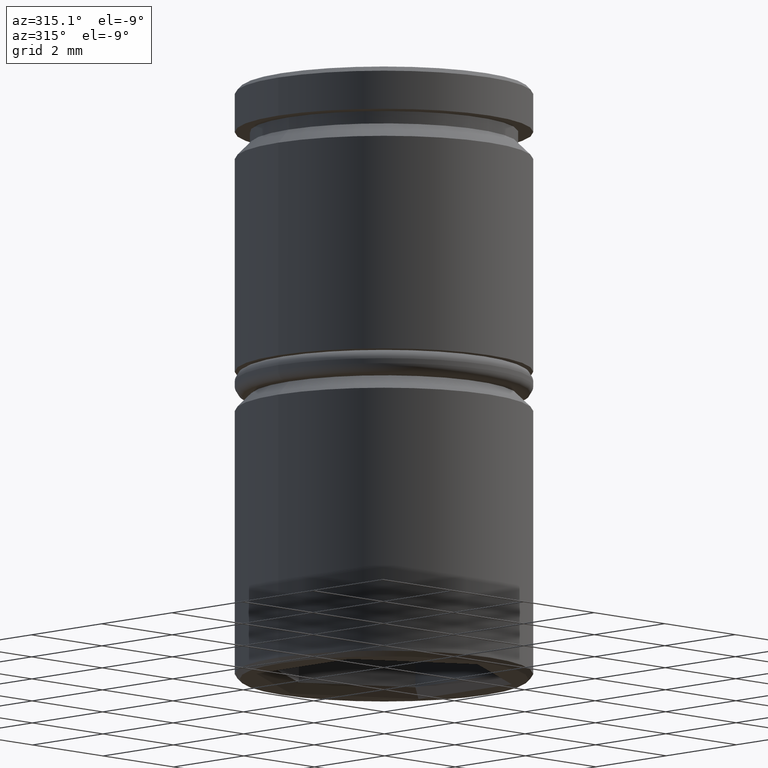
[diagram: clean part render]
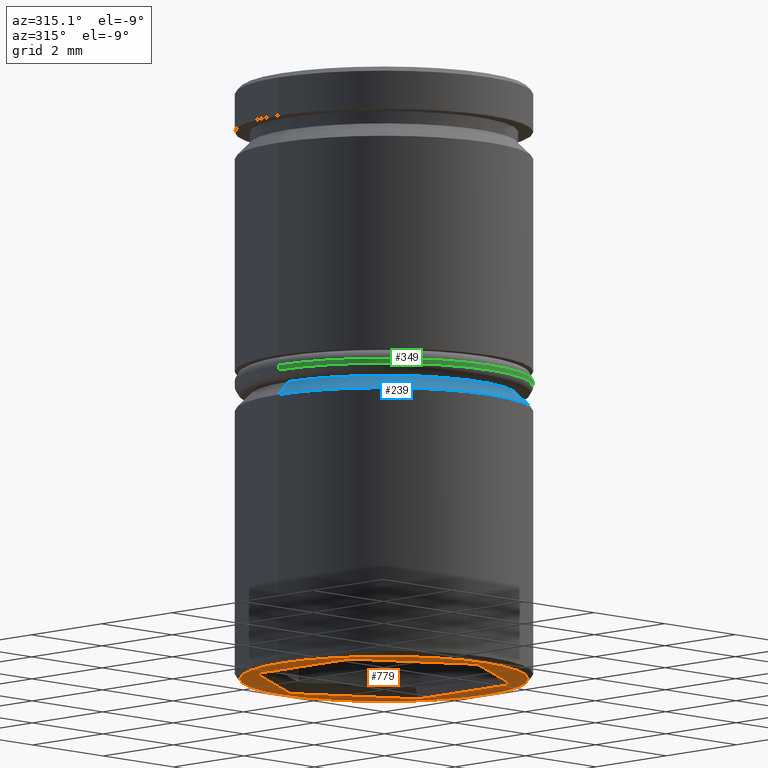
[diagram: same view with three faces highlighted in distinct colors, each labeled with its STEP entity id]
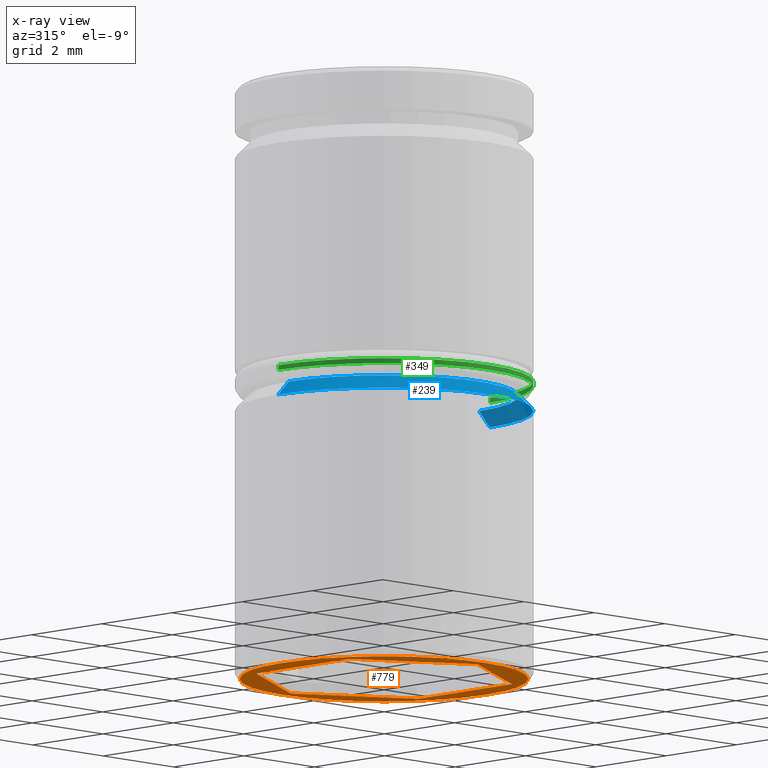
[diagram: x-ray of the same camera — body ghosted, the three highlighted faces saturated]
A machine part, auxiliary view with three faces highlighted in distinct colors.
The next image is the same camera in x-ray (body ghosted, the three faces saturated) — at least one of them is partly hidden behind the body in this view.
Their STEP definitions:

[orange] entity #779 — the highlighted planar face has unit normal (0, 0, -1).
#34 = LINE ( 'NONE', #200, #555 ) ;
#37 = LINE ( 'NONE', #1136, #434 ) ;
#56 = DIRECTION ( 'NONE',  ( -0.8660254037844385966, 0.4999999999999999445, 0.000000000000000000 ) ) ;
#66 = EDGE_CURVE ( 'NONE', #577, #532, #1058, .T. ) ;
#70 = VECTOR ( 'NONE', #887, 1000.000000000000000 ) ;
#92 = FACE_BOUND ( 'NONE', #357, .T. ) ;
#143 = CARTESIAN_POINT ( 'NONE',  ( 2.299999999999997158, 1.327905619136136917, -12.00000000000000000 ) ) ;
#200 = CARTESIAN_POINT ( 'NONE',  ( -0.1000000000000006856, -2.598076211353312903, -12.00000000000000000 ) ) ;
#257 = EDGE_CURVE ( 'NONE', #1003, #1124, #968, .T. ) ;
#272 = FACE_OUTER_BOUND ( 'NONE', #715, .T. ) ;
#309 = DIRECTION ( 'NONE',  ( 0.000000000000000000, -1.000000000000000000, 0.000000000000000000 ) ) ;
#353 = DIRECTION ( 'NONE',  ( -1.000000000000000000, 0.000000000000000000, -0.000000000000000000 ) ) ;
#357 = EDGE_LOOP ( 'NONE', ( #626, #556, #751, #617, #708, #399 ) ) ;
#391 = ORIENTED_EDGE ( 'NONE', *, *, #257, .T. ) ;
#393 = DIRECTION ( 'NONE',  ( -1.000000000000000000, 0.000000000000000000, 0.000000000000000000 ) ) ;
#394 = EDGE_CURVE ( 'NONE', #1124, #1003, #935, .T. ) ;
#399 = ORIENTED_EDGE ( 'NONE', *, *, #431, .T. ) ;
#402 = VERTEX_POINT ( 'NONE', #504 ) ;
#417 = CARTESIAN_POINT ( 'NONE',  ( -2.899999999999996803, 3.612708057484690125E-16, -12.00000000000000000 ) ) ;
#419 = EDGE_CURVE ( 'NONE', #402, #1010, #587, .T. ) ;
#431 = EDGE_CURVE ( 'NONE', #532, #528, #37, .T. ) ;
#434 = VECTOR ( 'NONE', #309, 1000.000000000000000 ) ;
#436 = CARTESIAN_POINT ( 'NONE',  ( 0.1000000000000002970, 2.598076211353312015, -12.00000000000000000 ) ) ;
#475 = VERTEX_POINT ( 'NONE', #143 ) ;
#490 = DIRECTION ( 'NONE',  ( 0.000000000000000000, 0.000000000000000000, -1.000000000000000000 ) ) ;
#504 = CARTESIAN_POINT ( 'NONE',  ( 4.012155603717831438E-16, -2.655811238272276054, -12.00000000000000000 ) ) ;
#521 = CARTESIAN_POINT ( 'NONE',  ( 2.299999999999997158, 1.212435565298211504, -12.00000000000000000 ) ) ;
#525 = CARTESIAN_POINT ( 'NONE',  ( 2.299999999999997158, -1.327905619136138915, -12.00000000000000000 ) ) ;
#528 = VERTEX_POINT ( 'NONE', #977 ) ;
#532 = VERTEX_POINT ( 'NONE', #1075 ) ;
#555 = VECTOR ( 'NONE', #1028, 1000.000000000000114 ) ;
#556 = ORIENTED_EDGE ( 'NONE', *, *, #419, .T. ) ;
#577 = VERTEX_POINT ( 'NONE', #904 ) ;
#587 = LINE ( 'NONE', #775, #1090 ) ;
#617 = ORIENTED_EDGE ( 'NONE', *, *, #1040, .T. ) ;
#626 = ORIENTED_EDGE ( 'NONE', *, *, #895, .T. ) ;
#640 = DIRECTION ( 'NONE',  ( -1.000000000000000000, 0.000000000000000000, 0.000000000000000000 ) ) ;
#678 = CARTESIAN_POINT ( 'NONE',  ( -2.199999999999997069, 1.385640646055100289, -12.00000000000000000 ) ) ;
#708 = ORIENTED_EDGE ( 'NONE', *, *, #66, .T. ) ;
#715 = EDGE_LOOP ( 'NONE', ( #391, #863 ) ) ;
#751 = ORIENTED_EDGE ( 'NONE', *, *, #1083, .T. ) ;
#775 = CARTESIAN_POINT ( 'NONE',  ( 2.199999999999997513, -1.385640646055101399, -12.00000000000000000 ) ) ;
#779 = ADVANCED_FACE ( 'NONE', ( #92, #272 ), #993, .T. ) ;
#863 = ORIENTED_EDGE ( 'NONE', *, *, #394, .T. ) ;
#887 = DIRECTION ( 'NONE',  ( -0.000000000000000000, 1.000000000000000000, 0.000000000000000000 ) ) ;
#895 = EDGE_CURVE ( 'NONE', #528, #402, #34, .T. ) ;
#904 = CARTESIAN_POINT ( 'NONE',  ( 3.995375355790125448E-16, 2.655811238272274277, -12.00000000000000000 ) ) ;
#928 = CARTESIAN_POINT ( 'NONE',  ( 0.000000000000000000, 0.000000000000000000, -12.00000000000000000 ) ) ;
#935 = CIRCLE ( 'NONE', #956, 2.899999999999996803 ) ;
#941 = CARTESIAN_POINT ( 'NONE',  ( 0.000000000000000000, 0.000000000000000000, -12.00000000000000000 ) ) ;
#952 = DIRECTION ( 'NONE',  ( 0.8660254037844387076, 0.4999999999999998890, 0.000000000000000000 ) ) ;
#955 = DIRECTION ( 'NONE',  ( -0.8660254037844388186, -0.4999999999999996669, 0.000000000000000000 ) ) ;
#956 = AXIS2_PLACEMENT_3D ( 'NONE', #941, #490, #393 ) ;
#968 = CIRCLE ( 'NONE', #1084, 2.899999999999996803 ) ;
#977 = CARTESIAN_POINT ( 'NONE',  ( -2.299999999999997158, -1.327905619136137805, -12.00000000000000000 ) ) ;
#988 = LINE ( 'NONE', #521, #70 ) ;
#993 = PLANE ( 'NONE',  #1005 ) ;
#997 = DIRECTION ( 'NONE',  ( 0.000000000000000000, 0.000000000000000000, -1.000000000000000000 ) ) ;
#1003 = VERTEX_POINT ( 'NONE', #1059 ) ;
#1005 = AXIS2_PLACEMENT_3D ( 'NONE', #1091, #997, #353 ) ;
#1010 = VERTEX_POINT ( 'NONE', #525 ) ;
#1028 = DIRECTION ( 'NONE',  ( 0.8660254037844385966, -0.5000000000000001110, 0.000000000000000000 ) ) ;
#1040 = EDGE_CURVE ( 'NONE', #475, #577, #1156, .T. ) ;
#1044 = VECTOR ( 'NONE', #56, 1000.000000000000114 ) ;
#1058 = LINE ( 'NONE', #678, #1122 ) ;
#1059 = CARTESIAN_POINT ( 'NONE',  ( 2.899999999999996803, 0.000000000000000000, -12.00000000000000000 ) ) ;
#1075 = CARTESIAN_POINT ( 'NONE',  ( -2.299999999999997158, 1.327905619136137583, -12.00000000000000000 ) ) ;
#1083 = EDGE_CURVE ( 'NONE', #1010, #475, #988, .T. ) ;
#1084 = AXIS2_PLACEMENT_3D ( 'NONE', #928, #1100, #640 ) ;
#1090 = VECTOR ( 'NONE', #952, 1000.000000000000000 ) ;
#1091 = CARTESIAN_POINT ( 'NONE',  ( 0.000000000000000000, 3.000000000000000000, -12.00000000000000000 ) ) ;
#1100 = DIRECTION ( 'NONE',  ( 0.000000000000000000, 0.000000000000000000, -1.000000000000000000 ) ) ;
#1122 = VECTOR ( 'NONE', #955, 1000.000000000000000 ) ;
#1124 = VERTEX_POINT ( 'NONE', #417 ) ;
#1136 = CARTESIAN_POINT ( 'NONE',  ( -2.299999999999997158, -1.212435565298212614, -12.00000000000000000 ) ) ;
#1156 = LINE ( 'NONE', #436, #1044 ) ;

[blue] entity #239 — the highlighted conical surface has half-angle 45 deg.
#25 = FACE_OUTER_BOUND ( 'NONE', #561, .T. ) ;
#48 = CIRCLE ( 'NONE', #710, 2.700000000000000178 ) ;
#87 = CARTESIAN_POINT ( 'NONE',  ( 0.000000000000000000, 0.000000000000000000, -6.250000000000000000 ) ) ;
#100 = VERTEX_POINT ( 'NONE', #420 ) ;
#188 = EDGE_CURVE ( 'NONE', #657, #1039, #48, .T. ) ;
#196 = EDGE_CURVE ( 'NONE', #657, #100, #913, .T. ) ;
#239 = ADVANCED_FACE ( 'NONE', ( #25 ), #1029, .T. ) ;
#249 = VECTOR ( 'NONE', #733, 1000.000000000000114 ) ;
#367 = CARTESIAN_POINT ( 'NONE',  ( -2.700000000000000178, 3.306546357697853733E-16, -6.250000000000000000 ) ) ;
#403 = DIRECTION ( 'NONE',  ( 0.000000000000000000, 0.000000000000000000, -1.000000000000000000 ) ) ;
#420 = CARTESIAN_POINT ( 'NONE',  ( -3.000000000000000000, 3.673940397442059868E-16, -6.549999999999997158 ) ) ;
#452 = CARTESIAN_POINT ( 'NONE',  ( -2.700000000000005063, 0.000000000000000000, -6.250000000000000000 ) ) ;
#459 = DIRECTION ( 'NONE',  ( -1.000000000000000000, 0.000000000000000000, 0.000000000000000000 ) ) ;
#474 = CARTESIAN_POINT ( 'NONE',  ( 0.000000000000000000, 0.000000000000000000, -6.250000000000000000 ) ) ;
#485 = CARTESIAN_POINT ( 'NONE',  ( 0.000000000000000000, 0.000000000000000000, -6.549999999999997158 ) ) ;
#512 = CARTESIAN_POINT ( 'NONE',  ( 2.700000000000000178, 0.000000000000000000, -6.250000000000000000 ) ) ;
#542 = CARTESIAN_POINT ( 'NONE',  ( 2.700000000000005063, 3.306546357697859650E-16, -6.250000000000000000 ) ) ;
#561 = EDGE_LOOP ( 'NONE', ( #994, #903, #987, #622 ) ) ;
#622 = ORIENTED_EDGE ( 'NONE', *, *, #882, .F. ) ;
#631 = AXIS2_PLACEMENT_3D ( 'NONE', #485, #403, #1035 ) ;
#646 = DIRECTION ( 'NONE',  ( 1.000000000000000000, 0.000000000000000000, 0.000000000000000000 ) ) ;
#657 = VERTEX_POINT ( 'NONE', #367 ) ;
#658 = LINE ( 'NONE', #542, #249 ) ;
#674 = EDGE_CURVE ( 'NONE', #1039, #685, #658, .T. ) ;
#685 = VERTEX_POINT ( 'NONE', #918 ) ;
#710 = AXIS2_PLACEMENT_3D ( 'NONE', #474, #1009, #646 ) ;
#733 = DIRECTION ( 'NONE',  ( 0.7071067811865460184, 8.659560562354913137E-17, -0.7071067811865490160 ) ) ;
#882 = EDGE_CURVE ( 'NONE', #685, #100, #1023, .T. ) ;
#903 = ORIENTED_EDGE ( 'NONE', *, *, #188, .F. ) ;
#913 = LINE ( 'NONE', #452, #986 ) ;
#918 = CARTESIAN_POINT ( 'NONE',  ( 3.000000000000000000, 0.000000000000000000, -6.549999999999997158 ) ) ;
#986 = VECTOR ( 'NONE', #1032, 1000.000000000000114 ) ;
#987 = ORIENTED_EDGE ( 'NONE', *, *, #196, .T. ) ;
#994 = ORIENTED_EDGE ( 'NONE', *, *, #674, .F. ) ;
#1002 = DIRECTION ( 'NONE',  ( 0.000000000000000000, 0.000000000000000000, -1.000000000000000000 ) ) ;
#1009 = DIRECTION ( 'NONE',  ( -0.000000000000000000, -0.000000000000000000, 1.000000000000000000 ) ) ;
#1023 = CIRCLE ( 'NONE', #631, 3.000000000000000000 ) ;
#1029 = CONICAL_SURFACE ( 'NONE', #1103, 2.700000000000005063, 0.7853981633974460586 ) ;
#1032 = DIRECTION ( 'NONE',  ( -0.7071067811865460184, 0.000000000000000000, -0.7071067811865490160 ) ) ;
#1035 = DIRECTION ( 'NONE',  ( 1.000000000000000000, 0.000000000000000000, 0.000000000000000000 ) ) ;
#1039 = VERTEX_POINT ( 'NONE', #512 ) ;
#1103 = AXIS2_PLACEMENT_3D ( 'NONE', #87, #1002, #459 ) ;

[green] entity #349 — the highlighted cylindrical surface (partial cylindrical patch) has radius 3 mm, axis along (-0, -0, 1).
#40 = CARTESIAN_POINT ( 'NONE',  ( -3.000000000000000444, 3.673940397442060361E-16, -14.73528137423857132 ) ) ;
#46 = LINE ( 'NONE', #488, #1168 ) ;
#53 = CARTESIAN_POINT ( 'NONE',  ( 0.000000000000000000, 0.000000000000000000, -14.73528137423857132 ) ) ;
#57 = DIRECTION ( 'NONE',  ( 0.000000000000000000, 0.000000000000000000, 1.000000000000000000 ) ) ;
#88 = VERTEX_POINT ( 'NONE', #241 ) ;
#137 = ORIENTED_EDGE ( 'NONE', *, *, #768, .T. ) ;
#201 = VERTEX_POINT ( 'NONE', #1125 ) ;
#241 = CARTESIAN_POINT ( 'NONE',  ( 3.000000000000000444, 0.000000000000000000, -5.949999999999998401 ) ) ;
#312 = ORIENTED_EDGE ( 'NONE', *, *, #954, .F. ) ;
#349 = ADVANCED_FACE ( 'NONE', ( #844 ), #865, .T. ) ;
#404 = VECTOR ( 'NONE', #766, 1000.000000000000000 ) ;
#479 = EDGE_LOOP ( 'NONE', ( #312, #1117, #753, #137 ) ) ;
#488 = CARTESIAN_POINT ( 'NONE',  ( 3.000000000000000444, 0.000000000000000000, -14.73528137423857132 ) ) ;
#549 = EDGE_CURVE ( 'NONE', #1088, #201, #647, .T. ) ;
#573 = VERTEX_POINT ( 'NONE', #644 ) ;
#621 = CARTESIAN_POINT ( 'NONE',  ( 0.000000000000000000, 0.000000000000000000, -6.049999999999999822 ) ) ;
#644 = CARTESIAN_POINT ( 'NONE',  ( -3.000000000000000444, 3.673940397442060361E-16, -5.949999999999998401 ) ) ;
#647 = CIRCLE ( 'NONE', #854, 3.000000000000000444 ) ;
#720 = EDGE_CURVE ( 'NONE', #201, #88, #46, .T. ) ;
#753 = ORIENTED_EDGE ( 'NONE', *, *, #720, .T. ) ;
#766 = DIRECTION ( 'NONE',  ( -0.000000000000000000, -0.000000000000000000, 1.000000000000000000 ) ) ;
#768 = EDGE_CURVE ( 'NONE', #88, #573, #822, .T. ) ;
#769 = DIRECTION ( 'NONE',  ( -0.000000000000000000, -0.000000000000000000, 1.000000000000000000 ) ) ;
#822 = CIRCLE ( 'NONE', #981, 3.000000000000000444 ) ;
#835 = LINE ( 'NONE', #40, #404 ) ;
#844 = FACE_OUTER_BOUND ( 'NONE', #479, .T. ) ;
#853 = AXIS2_PLACEMENT_3D ( 'NONE', #53, #769, #947 ) ;
#854 = AXIS2_PLACEMENT_3D ( 'NONE', #621, #57, #1099 ) ;
#865 = CYLINDRICAL_SURFACE ( 'NONE', #853, 3.000000000000000444 ) ;
#947 = DIRECTION ( 'NONE',  ( 1.000000000000000000, 0.000000000000000000, 0.000000000000000000 ) ) ;
#954 = EDGE_CURVE ( 'NONE', #1088, #573, #835, .T. ) ;
#964 = CARTESIAN_POINT ( 'NONE',  ( -3.000000000000000444, 3.673940397442060361E-16, -6.049999999999999822 ) ) ;
#981 = AXIS2_PLACEMENT_3D ( 'NONE', #1115, #1012, #1105 ) ;
#1012 = DIRECTION ( 'NONE',  ( 0.000000000000000000, 0.000000000000000000, -1.000000000000000000 ) ) ;
#1061 = DIRECTION ( 'NONE',  ( -0.000000000000000000, -0.000000000000000000, 1.000000000000000000 ) ) ;
#1088 = VERTEX_POINT ( 'NONE', #964 ) ;
#1099 = DIRECTION ( 'NONE',  ( 1.000000000000000000, 0.000000000000000000, 0.000000000000000000 ) ) ;
#1105 = DIRECTION ( 'NONE',  ( -1.000000000000000000, 0.000000000000000000, 0.000000000000000000 ) ) ;
#1115 = CARTESIAN_POINT ( 'NONE',  ( 0.000000000000000000, 0.000000000000000000, -5.949999999999998401 ) ) ;
#1117 = ORIENTED_EDGE ( 'NONE', *, *, #549, .T. ) ;
#1125 = CARTESIAN_POINT ( 'NONE',  ( 3.000000000000000444, 0.000000000000000000, -6.049999999999999822 ) ) ;
#1168 = VECTOR ( 'NONE', #1061, 1000.000000000000000 ) ;